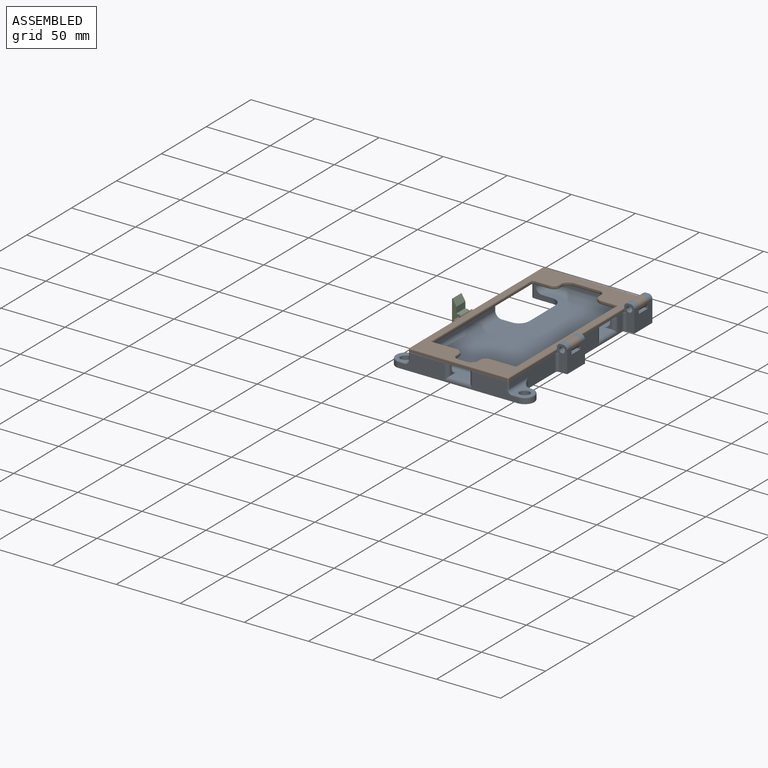
[diagram: assembled view]
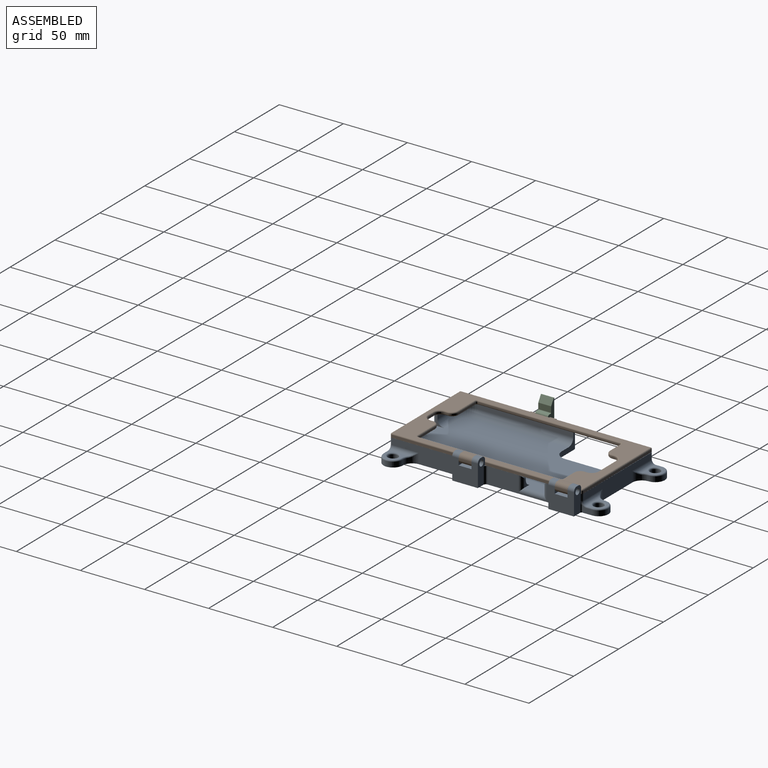
[diagram: assembled view, second angle]
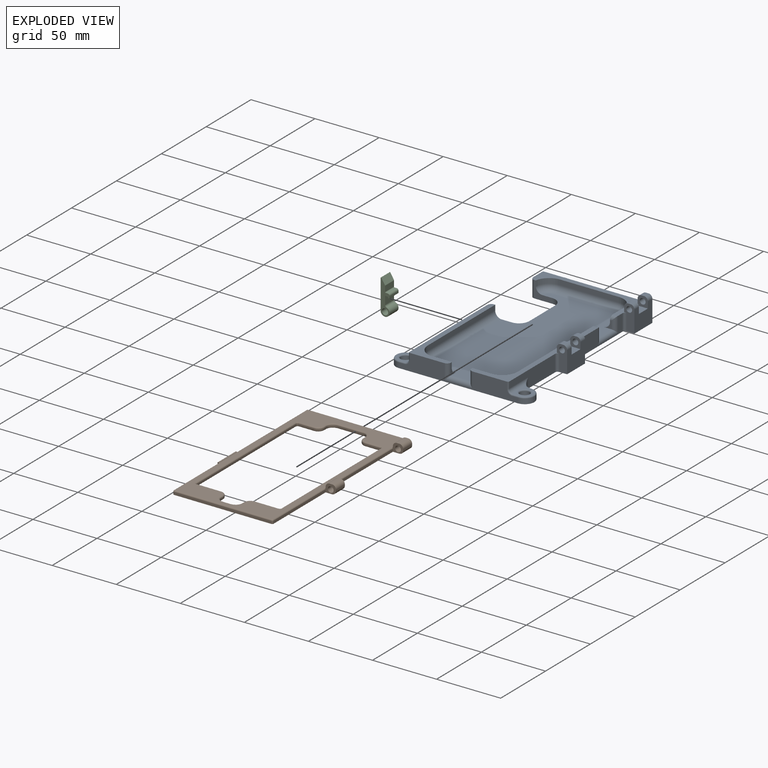
[diagram: exploded view]
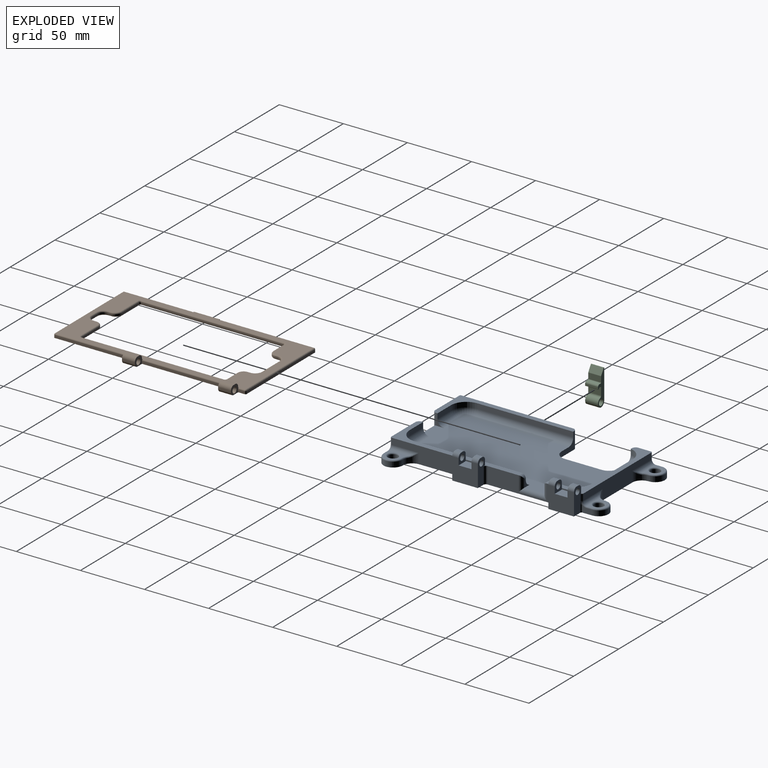
[diagram: exploded view, second angle]
ASSEMBLY  parts=3 mates=2
PART A: 159 faces, bbox 109.2x166.2x20 mm
  f0: plane 5x4mm, normal (-1,0,0), area 20mm2, adj f10,f119,f131,f137
  f1: plane 5x2mm, normal (0,0,1), area 10mm2, adj f119,f131,f137,f139
  f2: plane 5x4mm, normal (-1,0,0), area 20mm2, adj f13,f123,f127,f138
  f3: plane 5x2mm, normal (0,0,1), area 10mm2, adj f123,f127,f138,f140
  f4: plane 20x17mm, normal (1,0,0), area 290mm2, adj f25,f118,f119,f129,f131,f132,f139,f142
  f5: plane 20x17mm, normal (1,0,0), area 290mm2, adj f25,f122,f123,f125,f127,f128,f140,f144
  f6: plane 7.5x5.35mm, normal (1,0,0), area 31.2mm2, adj f25,f61,f98,f99,f148
  f7: plane 51x13mm, normal (1,0,0), area 399mm2, adj f10,f13,f25,f48,f49,f50,f145,f146
  f8: plane 87x13mm, normal (-1,0,0), area 863.9mm2, adj f19,f25,f44,f66,f71,f88,f110,f111
  f9: plane 76x13mm, normal (0,1,0), area 644mm2, adj f13,f25,f62,f63,f69,f70,f94,f100
  f10: plane 100x33mm, normal (0,0,1), area 538.5mm2, adj f0,f7,f11,f15,f22,f24,f28,f47
  f11: plane 15x4mm, normal (0,1,0), area 60mm2, adj f10,f12,f28,f53
  f12: cylinder r=5mm len=15mm, axis (-1,0,0), area 117.8mm2, adj f11,f26,f37,f53
  f13: plane 80x28mm, normal (0,0,1), area 508.3mm2, adj f2,f7,f9,f14,f17,f21,f27,f30
  f14: plane 15x4mm, normal (-1,0,0), area 58.1mm2, adj f13,f16,f27,f46,f51
  f15: plane 51x13mm, normal (1,0,0), area 491mm2, adj f10,f25,f68,f72,f82,f147
  f16: cylinder r=5mm len=15mm, axis (0,-1,0), area 117.8mm2, adj f14,f26,f34,f46
  f17: plane 18.5x13mm, normal (-1,0,0), area 167.4mm2, adj f13,f25,f43,f64,f92,f93,f94
  f18: plane 75x4mm, normal (1,0,0), area 300mm2, adj f19,f20,f29,f39
  f19: plane 91x31mm, normal (0,0,1), area 498.8mm2, adj f8,f18,f23,f24,f29,f39,f44,f52
  f20: cylinder r=5mm len=75mm, axis (0,1,0), area 589mm2, adj f18,f26,f33,f39
  f21: plane 46x4mm, normal (0,-1,0), area 184mm2, adj f13,f27,f30,f32
  f22: plane 87x4mm, normal (-1,0,0), area 346.1mm2, adj f10,f28,f36,f45,f47
  f23: plane 15x4mm, normal (0,1,0), area 60mm2, adj f19,f29,f35,f52
  f24: plane 93x13mm, normal (0,-1,0), area 798.9mm2, adj f10,f19,f25,f54,f55,f56,f65,f67
  f25: plane 165x108mm, normal (0,0,-1), area 11629.7mm2, adj f4,f5,f6,f7,f8,f9,f15,f17
  f26: plane 138x66mm, normal (0,0,1), area 7377.6mm2, adj f12,f16,f20,f31,f32,f33,f34,f35
  f27: cylinder r=12mm len=12mm, axis (0,0,-1), area 75.4mm2, adj f13,f14,f21,f34
  f28: cylinder r=12mm len=12mm, axis (0,0,1), area 75.4mm2, adj f10,f11,f22,f37
  f29: cylinder r=12mm len=12mm, axis (0,0,-1), area 75.4mm2, adj f18,f19,f23,f33
  f30: cylinder r=12mm len=11.83mm, axis (0,0,1), area 67.4mm2, adj f13,f21,f31,f38
  f31: torus R=7mm, axis (0,0,1), area 109.8mm2, adj f26,f30,f32,f38
  f32: cylinder r=5mm len=46mm, axis (1,0,0), area 361.3mm2, adj f21,f26,f31,f34
  f33: torus R=7mm, axis (0,0,1), area 125.6mm2, adj f20,f26,f29,f35
  f34: torus R=7mm, axis (0,0,1), area 125.6mm2, adj f16,f26,f27,f32
  f35: cylinder r=5mm len=15mm, axis (-1,0,0), area 117.8mm2, adj f23,f26,f33,f52
  f36: cylinder r=5mm len=87mm, axis (0,-1,0), area 683.3mm2, adj f22,f26,f37,f45
  f37: torus R=7mm, axis (0,0,1), area 125.6mm2, adj f12,f26,f28,f36
  f38: plane 14x13mm, normal (0,-1,0), area 72mm2, adj f13,f25,f26,f30,f31,f41,f43
  f39: plane 14x13mm, normal (0,1,0), area 70.4mm2, adj f18,f19,f20,f25,f26,f42,f44
  f40: plane 29x4mm, normal (-1,0,0), area 116mm2, adj f25,f26,f41,f42
  f41: cylinder r=8mm len=8mm, axis (0,0,-1), area 50.3mm2, adj f25,f26,f38,f40
  f42: cylinder r=8mm len=8mm, axis (0,0,1), area 50.3mm2, adj f25,f26,f39,f40
  f43: cylinder r=3mm len=13mm, axis (0,0,-1), area 61.3mm2, adj f13,f17,f25,f38
  f44: cylinder r=3mm len=13mm, axis (0,0,1), area 61.3mm2, adj f8,f19,f25,f39
  f45: plane 6x6mm, normal (0,1,0), area 11.4mm2, adj f22,f26,f36,f47,f48
  f46: plane 6x6mm, normal (0,-1,0), area 11.4mm2, adj f14,f16,f26,f50,f51
  f47: cylinder r=3mm len=4mm, axis (-1,0,0), area 13.7mm2, adj f10,f22,f45,f48
  f48: cylinder r=3mm len=12mm, axis (0,0,1), area 42.4mm2, adj f7,f45,f47,f49
  f49: cylinder r=3mm len=22mm, axis (0,-1,0), area 85.7mm2, adj f7,f26,f48,f50
  f50: cylinder r=3mm len=12mm, axis (0,0,-1), area 42.4mm2, adj f7,f46,f49,f51
  f51: cylinder r=3mm len=4mm, axis (1,0,0), area 13.7mm2, adj f13,f14,f46,f50
  f52: plane 9x6mm, normal (1,0,0), area 14.4mm2, adj f19,f23,f26,f35,f54
  f53: plane 9x6mm, normal (-1,0,0), area 14.4mm2, adj f10,f11,f12,f26,f55
  f54: cylinder r=3mm len=12mm, axis (0,0,1), area 47.5mm2, adj f19,f24,f52,f56
  f55: cylinder r=3mm len=12mm, axis (0,0,-1), area 47.5mm2, adj f10,f24,f53,f56
  f56: cylinder r=3mm len=22mm, axis (1,0,0), area 85.7mm2, adj f24,f26,f54,f55
  f57: plane 14.29x11mm, normal (0,0,1), area 55mm2, adj f69,f96,f97,f98,f105
  f58: plane 14.29x11mm, normal (0,0,1), area 55mm2, adj f70,f90,f91,f92,f107
  f59: plane 14.29x11mm, normal (0,0,1), area 55mm2, adj f72,f78,f79,f80,f103
  f60: plane 14.29x11mm, normal (0,0,1), area 55mm2, adj f71,f84,f85,f86,f101
  f61: cylinder r=7.5mm len=15mm, axis (0,0,1), area 94.2mm2, adj f6,f25,f62,f97
  f62: cylinder r=7.5mm len=8mm, axis (0,0,-1), area 58.7mm2, adj f9,f25,f61,f95,f96
  f63: cylinder r=7.5mm len=8mm, axis (0,0,1), area 58.7mm2, adj f9,f25,f64,f89,f90
  f64: cylinder r=7.5mm len=15mm, axis (0,0,1), area 94.2mm2, adj f17,f25,f63,f91
  f65: cylinder r=7.5mm len=15mm, axis (0,0,-1), area 94.2mm2, adj f24,f25,f66,f85
  f66: cylinder r=7.5mm len=8mm, axis (0,0,1), area 58.7mm2, adj f8,f25,f65,f83,f84
  f67: cylinder r=7.5mm len=15mm, axis (0,0,1), area 94.2mm2, adj f24,f25,f68,f79
  f68: cylinder r=7.5mm len=8mm, axis (0,0,1), area 58.7mm2, adj f15,f25,f67,f77,f78
  f69: cylinder r=3mm len=21.5mm, axis (-1,0,0), area 81.6mm2, adj f9,f57,f95,f99,f106
  f70: cylinder r=3mm len=21.5mm, axis (-1,0,0), area 81.6mm2, adj f9,f58,f89,f93,f108
  f71: cylinder r=3mm len=21.5mm, axis (0,-1,0), area 81.6mm2, adj f8,f60,f83,f87,f102
  f72: cylinder r=3mm len=21.5mm, axis (0,1,0), area 81.6mm2, adj f15,f59,f77,f81,f104
  f73: cylinder r=3.8mm len=7.6mm, axis (0,0,1), area 95.5mm2, adj f25,f101,f102
  f74: cylinder r=3.8mm len=7.6mm, axis (0,0,1), area 95.5mm2, adj f25,f103,f104
  f75: cylinder r=3.8mm len=7.6mm, axis (0,0,1), area 95.5mm2, adj f25,f107,f108
  f76: cylinder r=3.8mm len=7.6mm, axis (0,0,1), area 95.5mm2, adj f25,f105,f106
  f77: bspline ~7.66x4.24mm, area 6.9mm2, adj f68,f72,f78
  f78: torus R=8.5mm, axis (0,0,1), area 6.9mm2, adj f59,f68,f77,f79
  f79: torus R=6.5mm, axis (0,0,1), area 35.2mm2, adj f59,f67,f78,f80
  f80: cylinder r=1mm len=4.5mm, axis (1,0,0), area 7.1mm2, adj f24,f59,f79,f81
  f81: torus R=4mm, axis (0,-1,0), area 8.3mm2, adj f24,f72,f80,f82
  f82: cylinder r=1mm len=5mm, axis (0,0,-1), area 7.9mm2, adj f10,f15,f24,f81
  f83: bspline ~7.66x4.24mm, area 6.9mm2, adj f66,f71,f84
  f84: torus R=8.5mm, axis (0,0,1), area 6.9mm2, adj f60,f66,f83,f85
  f85: torus R=6.5mm, axis (0,0,1), area 35.2mm2, adj f60,f65,f84,f86
  f86: cylinder r=1mm len=4.5mm, axis (-1,0,0), area 7.1mm2, adj f24,f60,f85,f87
  f87: torus R=4mm, axis (0,-1,0), area 8.3mm2, adj f24,f71,f86,f88
  f88: cylinder r=1mm len=5mm, axis (0,0,1), area 7.9mm2, adj f8,f19,f24,f87
  f89: bspline ~7.66x4.24mm, area 6.9mm2, adj f63,f70,f90
  f90: torus R=8.5mm, axis (0,0,1), area 6.9mm2, adj f58,f63,f89,f91
  f91: torus R=6.5mm, axis (0,0,1), area 35.2mm2, adj f58,f64,f90,f92
  f92: cylinder r=1mm len=4.5mm, axis (0,-1,0), area 7.1mm2, adj f17,f58,f91,f93
  f93: torus R=4mm, axis (1,0,0), area 8.3mm2, adj f17,f70,f92,f94
  f94: cylinder r=1mm len=5mm, axis (0,0,-1), area 7.9mm2, adj f9,f13,f17,f93
  f95: bspline ~7.66x4.24mm, area 6.9mm2, adj f62,f69,f96
  f96: torus R=8.5mm, axis (0,0,1), area 6.9mm2, adj f57,f62,f95,f97
  f97: torus R=6.5mm, axis (0,0,1), area 35.2mm2, adj f57,f61,f96,f98
  f98: cylinder r=1mm len=4.5mm, axis (0,1,0), area 7.1mm2, adj f6,f57,f97,f99
  f99: torus R=4mm, axis (1,0,0), area 7.3mm2, adj f6,f69,f98,f100,f150
  f100: cylinder r=1mm len=5mm, axis (0,0,1), area 5.2mm2, adj f9,f13,f99,f149
  f101: torus R=4.8mm, axis (0,0,1), area 36.4mm2, adj f60,f73,f102
  f102: bspline ~5.11x1.5mm, area 4.5mm2, adj f71,f73,f101
  f103: torus R=4.8mm, axis (0,0,1), area 36.4mm2, adj f59,f74,f104
  f104: bspline ~5.11x1.5mm, area 4.5mm2, adj f72,f74,f103
  f105: torus R=4.8mm, axis (0,0,1), area 36.4mm2, adj f57,f76,f106
  f106: bspline ~5.11x1.5mm, area 4.5mm2, adj f69,f76,f105
  f107: torus R=4.8mm, axis (0,0,1), area 36.4mm2, adj f58,f75,f108
  f108: bspline ~5.11x1.5mm, area 4.5mm2, adj f70,f75,f107
  f109: plane 5x1mm, normal (0,0,1), area 5mm2, adj f110,f111,f156,f158
  f110: plane 10x7mm, normal (0,1,0), area 31.2mm2, adj f8,f25,f109,f112,f152,f156,f157,f158
  f111: plane 10x7mm, normal (0,-1,0), area 31.2mm2, adj f8,f25,f109,f112,f152,f156,f157,f158
  f112: plane 5x1mm, normal (-1,0,0), area 5mm2, adj f110,f111,f157,f158
  f113: plane 4.51x1mm, normal (0,0,1), area 4.5mm2, adj f114,f115,f153,f155
  f114: plane 10x7mm, normal (0,1,0), area 31.2mm2, adj f8,f25,f113,f116,f151,f153,f154,f155
  f115: plane 10x7mm, normal (0,-1,0), area 31.2mm2, adj f8,f25,f113,f116,f151,f153,f154,f155
  f116: plane 4.51x1mm, normal (-1,0,0), area 4.5mm2, adj f114,f115,f154,f155
  f117: plane 5x4mm, normal (-1,0,0), area 20mm2, adj f10,f118,f129,f141
  f118: plane 20x8mm, normal (0,1,0), area 114.2mm2, adj f4,f10,f25,f117,f120,f134,f141,f142
  f119: plane 20x8mm, normal (0,-1,0), area 114.2mm2, adj f0,f1,f4,f10,f25,f133,f137,f139
  f120: plane 5x2mm, normal (0,0,1), area 10mm2, adj f118,f129,f141,f142
  f121: plane 5x4mm, normal (-1,0,0), area 20mm2, adj f13,f122,f125,f143
  f122: plane 20x8mm, normal (0,1,0), area 128.9mm2, adj f5,f13,f25,f121,f124,f136,f143,f144
  f123: plane 20x8mm, normal (0,-1,0), area 114.2mm2, adj f2,f3,f5,f13,f25,f135,f138,f140
  f124: plane 5x2mm, normal (0,0,1), area 10mm2, adj f122,f125,f143,f144
  f125: plane 8x8mm, normal (0,-1,0), area 44.2mm2, adj f5,f121,f124,f126,f128,f136,f143,f144
  f126: plane 10x1mm, normal (1,0,0), area 10mm2, adj f13,f125,f127,f128
  f127: plane 8x8mm, normal (0,1,0), area 44.2mm2, adj f2,f3,f5,f126,f128,f135,f138,f140
  f128: plane 10x8mm, normal (0,0,1), area 80mm2, adj f5,f125,f126,f127
  f129: plane 8x8mm, normal (0,-1,0), area 44.2mm2, adj f4,f117,f120,f130,f132,f134,f141,f142
  f130: plane 10x1mm, normal (1,0,0), area 10mm2, adj f10,f129,f131,f132
  f131: plane 8x8mm, normal (0,1,0), area 44.2mm2, adj f0,f1,f4,f130,f132,f133,f137,f139
  f132: plane 10x8mm, normal (0,0,1), area 80mm2, adj f4,f129,f130,f131
  f133: cylinder r=2.25mm len=5mm, axis (0,1,0), area 70.7mm2, adj f119,f131
  f134: cylinder r=2.25mm len=5mm, axis (0,1,0), area 70.7mm2, adj f118,f129
  f135: cylinder r=2.25mm len=5mm, axis (0,1,0), area 70.7mm2, adj f123,f127
  f136: cylinder r=2.25mm len=5mm, axis (0,1,0), area 70.7mm2, adj f122,f125
  f137: cylinder r=3mm len=5mm, axis (0,1,0), area 23.6mm2, adj f0,f1,f119,f131
  f138: cylinder r=3mm len=5mm, axis (0,1,0), area 23.6mm2, adj f2,f3,f123,f127
  f139: cylinder r=3mm len=5mm, axis (0,-1,0), area 23.6mm2, adj f1,f4,f119,f131
  f140: cylinder r=3mm len=5mm, axis (0,-1,0), area 23.6mm2, adj f3,f5,f123,f127
  f141: cylinder r=3mm len=5mm, axis (0,1,0), area 23.6mm2, adj f117,f118,f120,f129
  f142: cylinder r=3mm len=5mm, axis (0,-1,0), area 23.6mm2, adj f4,f118,f120,f129
  f143: cylinder r=3mm len=5mm, axis (0,1,0), area 23.6mm2, adj f121,f122,f124,f125
  f144: cylinder r=3mm len=5mm, axis (0,-1,0), area 23.6mm2, adj f5,f122,f124,f125
  f145: cylinder r=2mm len=13mm, axis (0,0,-1), area 40.8mm2, adj f7,f13,f25,f123
  f146: cylinder r=2mm len=13mm, axis (0,0,1), area 40.8mm2, adj f7,f10,f25,f118
  f147: cylinder r=2mm len=13mm, axis (0,0,-1), area 40.8mm2, adj f10,f15,f25,f119
  f148: cylinder r=1mm len=5.35mm, axis (0,0,1), area 8.4mm2, adj f6,f25,f122,f150
  f149: cylinder r=1mm len=5mm, axis (0,0,1), area 5.2mm2, adj f13,f100,f122,f150
  f150: bspline ~3.51x1.2mm, area 3.3mm2, adj f99,f122,f148,f149
  f151: cylinder r=2.25mm len=4.51mm, axis (0,1,0), area 63.7mm2, adj f114,f115
  f152: cylinder r=2.25mm len=5mm, axis (0,1,0), area 70.7mm2, adj f110,f111
  f153: cylinder r=3mm len=4.51mm, axis (0,-1,0), area 21.2mm2, adj f8,f113,f114,f115
  f154: cylinder r=3mm len=4.51mm, axis (0,1,0), area 21.2mm2, adj f25,f114,f115,f116
  f155: cylinder r=3mm len=4.51mm, axis (0,-1,0), area 21.2mm2, adj f113,f114,f115,f116
  f156: cylinder r=3mm len=5mm, axis (0,-1,0), area 23.6mm2, adj f8,f109,f110,f111
  f157: cylinder r=3mm len=5mm, axis (0,1,0), area 23.6mm2, adj f25,f110,f111,f112
  f158: cylinder r=3mm len=5mm, axis (0,-1,0), area 23.6mm2, adj f109,f110,f111,f112
PART B: 121 faces, bbox 88.5x150x7 mm
  f0: plane 20x1.3mm, normal (-1,0,0), area 26mm2, adj f1,f2,f4,f117
  f1: plane 2.5x1.8mm, normal (0,1,0), area 3.5mm2, adj f0,f4,f5,f115,f116,f117,f118,f119
  f2: plane 2.5x1.8mm, normal (0,-1,0), area 3.5mm2, adj f0,f4,f5,f115,f116,f117,f118,f119
  f3: plane 148x77mm, normal (0,0,1), area 2868.6mm2, adj f8,f10,f12,f14,f44,f45,f49,f50
  f4: plane 150x85.5mm, normal (0,0,-1), area 3449.7mm2, adj f0,f1,f2,f5,f6,f7,f8,f10
  f5: plane 148x2mm, normal (-1,0,0), area 266mm2, adj f1,f2,f4,f92,f95,f96,f120
  f6: plane 76x2mm, normal (0,-1,0), area 152mm2, adj f4,f90,f93,f95
  f7: plane 58x2mm, normal (1,0,0), area 116mm2, adj f4,f8,f89,f90
  f8: plane 9x7mm, normal (0,-1,0), area 34.5mm2, adj f3,f4,f7,f9,f89,f105,f106,f108
  f9: plane 10x1mm, normal (1,0,0), area 10mm2, adj f8,f10,f112,f113
  f10: plane 9x7mm, normal (0,1,0), area 34.5mm2, adj f3,f4,f9,f11,f102,f105,f106,f108
  f11: plane 65x2mm, normal (1,0,0), area 130mm2, adj f4,f10,f12,f102
  f12: plane 9x7mm, normal (0,-1,0), area 34.5mm2, adj f3,f4,f11,f13,f102,f103,f104,f107
  f13: plane 10x1mm, normal (1,0,0), area 10mm2, adj f12,f14,f110,f114
  f14: plane 9x7mm, normal (0,1,0), area 34.5mm2, adj f3,f4,f13,f15,f98,f103,f104,f107
  f15: plane 5x2mm, normal (1,0,0), area 10mm2, adj f4,f14,f98,f101
  f16: plane 2x1mm, normal (1,0,0), area 2mm2, adj f29,f36,f69,f85
  f17: plane 19x1mm, normal (0,1,0), area 19mm2, adj f29,f78,f84,f88
  f18: plane 111x1mm, normal (1,0,0), area 111mm2, adj f76,f77,f83,f84
  f19: plane 12x1mm, normal (0,-1,0), area 12mm2, adj f30,f68,f75,f76
  f20: plane 2x1mm, normal (1,0,0), area 2mm2, adj f30,f31,f60,f67
  f21: plane 20x1mm, normal (0,-1,0), area 20mm2, adj f31,f32,f51,f59
  f22: plane 2x1mm, normal (-1,0,0), area 2mm2, adj f32,f33,f40,f50
  f23: plane 12x1mm, normal (0,-1,0), area 12mm2, adj f33,f37,f43,f44
  f24: plane 111x1mm, normal (-1,0,0), area 111mm2, adj f42,f43,f53,f54
  f25: plane 19x1mm, normal (0,1,0), area 19mm2, adj f34,f41,f53,f62
  f26: plane 2x1mm, normal (-1,0,0), area 2mm2, adj f34,f35,f52,f70
  f27: plane 6x1mm, normal (0,1,0), area 6mm2, adj f35,f36,f61,f79
  f28: plane 76x2mm, normal (0,1,0), area 152mm2, adj f4,f96,f99,f101
  f29: cylinder r=5mm len=5mm, axis (0,0,-1), area 7.9mm2, adj f16,f17,f73,f87
  f30: cylinder r=5mm len=5mm, axis (0,0,-1), area 7.9mm2, adj f19,f20,f64,f71
  f31: cylinder r=5mm len=5mm, axis (0,0,1), area 7.9mm2, adj f20,f21,f56,f63
  f32: cylinder r=5mm len=5mm, axis (0,0,-1), area 7.9mm2, adj f21,f22,f46,f55
  f33: cylinder r=5mm len=5mm, axis (0,0,1), area 7.9mm2, adj f22,f23,f38,f45
  f34: cylinder r=5mm len=5mm, axis (0,0,1), area 7.9mm2, adj f25,f26,f47,f66
  f35: cylinder r=5mm len=5mm, axis (0,0,-1), area 7.9mm2, adj f26,f27,f57,f74
  f36: cylinder r=5mm len=5mm, axis (0,0,1), area 7.9mm2, adj f16,f27,f65,f82
  f37: cylinder r=1mm len=12mm, axis (1,0,0), area 18.8mm2, adj f4,f23,f38,f39
  f38: torus R=4mm, axis (0,0,1), area 11.4mm2, adj f4,f33,f37,f40
  f39: torus R=2mm, axis (0,0,1), area 3.4mm2, adj f4,f37,f42,f43
  f40: cylinder r=1mm len=2mm, axis (0,-1,0), area 3.1mm2, adj f4,f22,f38,f46
  f41: cylinder r=1mm len=19mm, axis (-1,0,0), area 29.8mm2, adj f4,f25,f47,f48
  f42: cylinder r=1mm len=111mm, axis (0,-1,0), area 174.4mm2, adj f4,f24,f39,f48
  f43: cylinder r=1mm len=1mm, axis (0,0,1), area 1.6mm2, adj f23,f24,f39,f49
  f44: cylinder r=1mm len=12mm, axis (-1,0,0), area 18.8mm2, adj f3,f23,f45,f49
  f45: torus R=4mm, axis (0,0,1), area 11.4mm2, adj f3,f33,f44,f50
  f46: torus R=6mm, axis (0,0,1), area 13.2mm2, adj f4,f32,f40,f51
  f47: torus R=4mm, axis (0,0,1), area 11.4mm2, adj f4,f34,f41,f52
  f48: torus R=2mm, axis (0,0,1), area 3.4mm2, adj f4,f41,f42,f53
  f49: torus R=2mm, axis (0,0,1), area 3.4mm2, adj f3,f43,f44,f54
  f50: cylinder r=1mm len=2mm, axis (0,1,0), area 3.1mm2, adj f3,f22,f45,f55
  f51: cylinder r=1mm len=20mm, axis (1,0,0), area 31.4mm2, adj f4,f21,f46,f56
  f52: cylinder r=1mm len=2mm, axis (0,-1,0), area 3.1mm2, adj f4,f26,f47,f57
  f53: cylinder r=1mm len=1mm, axis (0,0,-1), area 1.6mm2, adj f24,f25,f48,f58
  f54: cylinder r=1mm len=111mm, axis (0,1,0), area 174.4mm2, adj f3,f24,f49,f58
  f55: torus R=6mm, axis (0,0,1), area 13.2mm2, adj f3,f32,f50,f59
  f56: torus R=6mm, axis (0,0,1), area 13.2mm2, adj f4,f31,f51,f60
  f57: torus R=6mm, axis (0,0,1), area 13.2mm2, adj f4,f35,f52,f61
  f58: torus R=2mm, axis (0,0,1), area 3.4mm2, adj f3,f53,f54,f62
  f59: cylinder r=1mm len=20mm, axis (-1,0,0), area 31.4mm2, adj f3,f21,f55,f63
  f60: cylinder r=1mm len=2mm, axis (0,1,0), area 3.1mm2, adj f4,f20,f56,f64
  f61: cylinder r=1mm len=6mm, axis (-1,0,0), area 9.4mm2, adj f4,f27,f57,f65
  f62: cylinder r=1mm len=19mm, axis (1,0,0), area 29.8mm2, adj f3,f25,f58,f66
  f63: torus R=6mm, axis (0,0,1), area 13.2mm2, adj f3,f31,f59,f67
  f64: torus R=4mm, axis (0,0,1), area 11.4mm2, adj f4,f30,f60,f68
  f65: torus R=6mm, axis (0,0,1), area 13.2mm2, adj f4,f36,f61,f69
  f66: torus R=4mm, axis (0,0,1), area 11.4mm2, adj f3,f34,f62,f70
  f67: cylinder r=1mm len=2mm, axis (0,-1,0), area 3.1mm2, adj f3,f20,f63,f71
  f68: cylinder r=1mm len=12mm, axis (1,0,0), area 18.8mm2, adj f4,f19,f64,f72
  f69: cylinder r=1mm len=2mm, axis (0,1,0), area 3.1mm2, adj f4,f16,f65,f73
  f70: cylinder r=1mm len=2mm, axis (0,1,0), area 3.1mm2, adj f3,f26,f66,f74
  f71: torus R=4mm, axis (0,0,1), area 11.4mm2, adj f3,f30,f67,f75
  f72: torus R=2mm, axis (0,0,1), area 3.4mm2, adj f4,f68,f76,f77
  f73: torus R=4mm, axis (0,0,1), area 11.4mm2, adj f4,f29,f69,f78
  f74: torus R=6mm, axis (0,0,1), area 13.2mm2, adj f3,f35,f70,f79
  f75: cylinder r=1mm len=12mm, axis (-1,0,0), area 18.8mm2, adj f3,f19,f71,f80
  f76: cylinder r=1mm len=1mm, axis (0,0,-1), area 1.6mm2, adj f18,f19,f72,f80
  f77: cylinder r=1mm len=111mm, axis (0,1,0), area 174.4mm2, adj f4,f18,f72,f81
  f78: cylinder r=1mm len=19mm, axis (-1,0,0), area 29.8mm2, adj f4,f17,f73,f81
  f79: cylinder r=1mm len=6mm, axis (1,0,0), area 9.4mm2, adj f3,f27,f74,f82
  f80: torus R=2mm, axis (0,0,1), area 3.4mm2, adj f3,f75,f76,f83
  f81: torus R=2mm, axis (0,0,1), area 3.4mm2, adj f4,f77,f78,f84
  f82: torus R=6mm, axis (0,0,1), area 13.2mm2, adj f3,f36,f79,f85
  f83: cylinder r=1mm len=111mm, axis (0,-1,0), area 174.4mm2, adj f3,f18,f80,f86
  f84: cylinder r=1mm len=1mm, axis (0,0,1), area 1.6mm2, adj f17,f18,f81,f86
  f85: cylinder r=1mm len=2mm, axis (0,-1,0), area 3.1mm2, adj f3,f16,f82,f87
  f86: torus R=2mm, axis (0,0,1), area 3.4mm2, adj f3,f83,f84,f88
  f87: torus R=4mm, axis (0,0,1), area 11.4mm2, adj f3,f29,f85,f88
  f88: cylinder r=1mm len=19mm, axis (1,0,0), area 29.8mm2, adj f3,f17,f86,f87
  f89: cylinder r=1mm len=58mm, axis (0,-1,0), area 91.1mm2, adj f3,f7,f8,f91
  f90: cylinder r=1mm len=2mm, axis (0,0,-1), area 3.1mm2, adj f4,f6,f7,f91
  f91: sphere r=1mm, area 1.6mm2, adj f89,f90,f93
  f92: cylinder r=1mm len=148mm, axis (0,1,0), area 232.5mm2, adj f3,f5,f94,f97
  f93: cylinder r=1mm len=76mm, axis (-1,0,0), area 119.4mm2, adj f3,f6,f91,f94
  f94: sphere r=1mm, area 1.6mm2, adj f92,f93,f95
  f95: cylinder r=1mm len=2mm, axis (0,0,1), area 3.1mm2, adj f4,f5,f6,f94
  f96: cylinder r=1mm len=2mm, axis (0,0,-1), area 3.1mm2, adj f4,f5,f28,f97
  f97: sphere r=1mm, area 1.6mm2, adj f92,f96,f99
  f98: cylinder r=1mm len=5mm, axis (0,-1,0), area 7.9mm2, adj f3,f14,f15,f100
  f99: cylinder r=1mm len=76mm, axis (1,0,0), area 119.4mm2, adj f3,f28,f97,f100
  f100: sphere r=1mm, area 1.6mm2, adj f98,f99,f101
  f101: cylinder r=1mm len=2mm, axis (0,0,1), area 3.1mm2, adj f4,f15,f28,f100
  f102: cylinder r=1mm len=65mm, axis (0,-1,0), area 102.1mm2, adj f3,f10,f11,f12
  f103: plane 10x1mm, normal (-1,0,0), area 10mm2, adj f3,f12,f14,f109
  f104: plane 10x2mm, normal (0,0,1), area 20mm2, adj f12,f14,f109,f110
  f105: plane 10x1mm, normal (-1,0,0), area 10mm2, adj f3,f8,f10,f111
  f106: plane 10x2mm, normal (0,0,1), area 20mm2, adj f8,f10,f111,f112
  f107: cylinder r=2.25mm len=10mm, axis (0,1,0), area 141.4mm2, adj f12,f14
  f108: cylinder r=2.25mm len=10mm, axis (0,1,0), area 141.4mm2, adj f8,f10
  f109: cylinder r=3mm len=10mm, axis (0,1,0), area 47.1mm2, adj f12,f14,f103,f104
  f110: cylinder r=3mm len=10mm, axis (0,-1,0), area 47.1mm2, adj f12,f13,f14,f104
  f111: cylinder r=3mm len=10mm, axis (0,1,0), area 47.1mm2, adj f8,f10,f105,f106
  f112: cylinder r=3mm len=10mm, axis (0,-1,0), area 47.1mm2, adj f8,f9,f10,f106
  f113: cylinder r=3mm len=10mm, axis (0,1,0), area 47.1mm2, adj f4,f8,f9,f10
  f114: cylinder r=3mm len=10mm, axis (0,1,0), area 47.1mm2, adj f4,f12,f13,f14
  f115: plane 20x0.27mm, normal (0,0,1), area 5.4mm2, adj f1,f2,f119,f120
  f116: plane 20x0.25mm, normal (0,0,1), area 5mm2, adj f1,f2,f117,f118
  f117: cylinder r=0.5mm len=20mm, axis (0,-1,0), area 15.7mm2, adj f0,f1,f2,f116
  f118: cylinder r=0.5mm len=20mm, axis (0,-1,0), area 13.7mm2, adj f1,f2,f116,f119
  f119: cylinder r=0.5mm len=20mm, axis (0,-1,0), area 13.7mm2, adj f1,f2,f115,f118
  f120: cylinder r=0.5mm len=20mm, axis (0,1,0), area 15.7mm2, adj f1,f2,f5,f115
PART C: 22 faces, bbox 7x27x10 mm
  f0: plane 10x1.3mm, normal (1,0,0), area 13mm2, adj f4,f5,f12,f18
  f1: plane 10x1.5mm, normal (0,1,0), area 15mm2, adj f4,f5,f12,f20
  f2: plane 10x4.36mm, normal (1,0,0), area 43.6mm2, adj f4,f5,f13,f20
  f3: plane 23x10mm, normal (-1,0,0), area 230mm2, adj f4,f5,f10,f14
  f4: plane 26.98x7mm, normal (0,0,1), area 94.5mm2, adj f0,f1,f2,f3,f6,f7,f8,f9
  f5: plane 26.98x7mm, normal (0,0,-1), area 94.5mm2, adj f0,f1,f2,f3,f6,f7,f8,f9
  f6: plane 10x0.1mm, normal (0,-1,0), area 1mm2, adj f4,f5,f18,f21
  f7: plane 10x1.4mm, normal (0,-1,0), area 14mm2, adj f4,f5,f16,f17
  f8: plane 10x5.93mm, normal (1,0,0), area 59.3mm2, adj f4,f5,f11,f17
  f9: plane 10x4.64mm, normal (0.86,0.51,0), area 54.1mm2, adj f4,f5,f13,f15
  f10: cylinder r=3.5mm len=10mm, axis (0,0,1), area 154.3mm2, adj f3,f4,f5,f11
  f11: cylinder r=1.5mm len=10mm, axis (0,0,1), area 19mm2, adj f4,f5,f8,f10
  f12: cylinder r=1.5mm len=10mm, axis (0,0,1), area 23.6mm2, adj f0,f1,f4,f5
  f13: cylinder r=0.5mm len=10mm, axis (0,0,-1), area 2.7mm2, adj f2,f4,f5,f9
  f14: cylinder r=0.5mm len=10mm, axis (0,0,-1), area 6.4mm2, adj f3,f4,f5,f15
  f15: cylinder r=0.5mm len=10mm, axis (0,0,-1), area 3.7mm2, adj f4,f5,f9,f14
  f16: cylinder r=0.5mm len=10mm, axis (0,0,-1), area 7.9mm2, adj f4,f5,f7,f21
  f17: cylinder r=0.5mm len=10mm, axis (0,0,1), area 7.9mm2, adj f4,f5,f7,f8
  f18: cylinder r=0.5mm len=10mm, axis (0,0,1), area 7.9mm2, adj f0,f4,f5,f6
  f19: cylinder r=2.4mm len=10mm, axis (0,0,1), area 150.8mm2, adj f4,f5
  f20: cylinder r=0.5mm len=10mm, axis (0,0,-1), area 7.9mm2, adj f1,f2,f4,f5
  f21: cylinder r=0.5mm len=10mm, axis (0,0,1), area 7.9mm2, adj f4,f5,f6,f16
PLACE A t=(10.51,-8.63,28.9)mm
PLACE B rot(axis=(0,1,0),0.1deg) t=(10.47,-8.63,29)mm
PLACE C rot(axis=(1,0,0),90deg) t=(-35.49,-15.13,28.9)mm
MATE revolute B.f107 <-> A.f133  axis (0,-1,0) through (53.51,-24.63,44.9)mm
MATE revolute A.f151 <-> C.f10  axis (0,-1,0) through (-31.99,-15.13,32.4)mm
